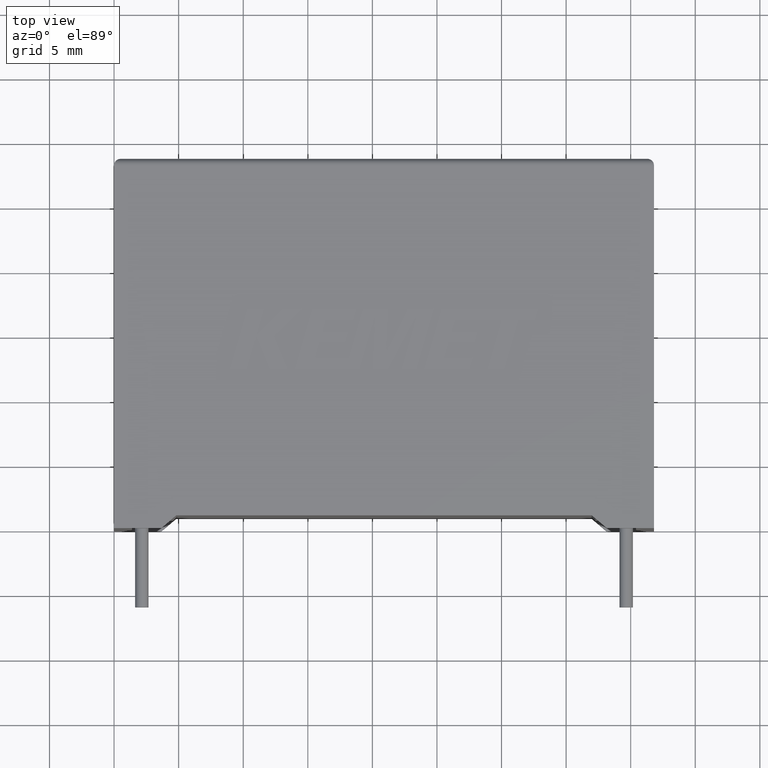
[diagram: clean part render]
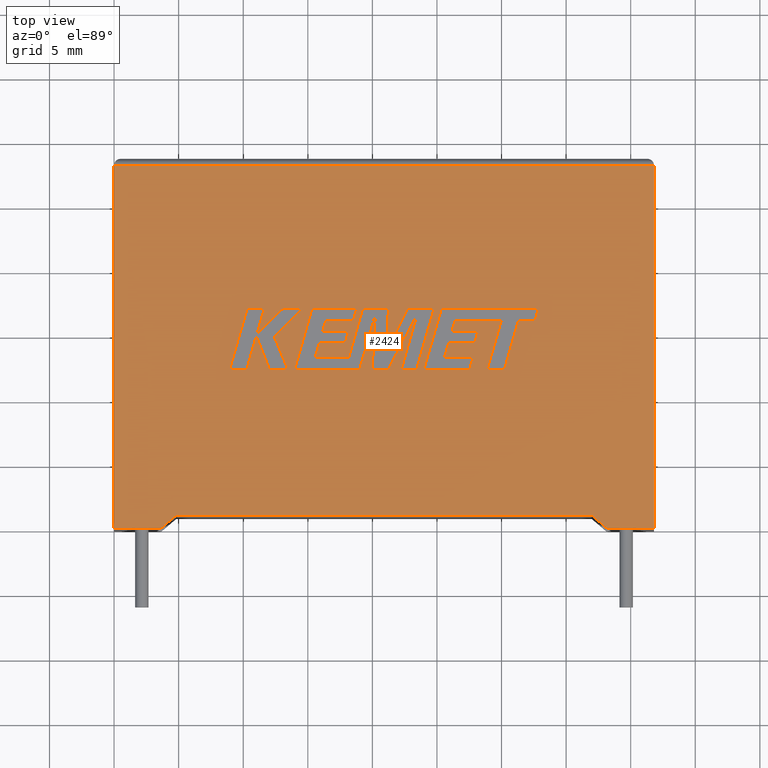
[diagram: same view with one face highlighted and labeled with its STEP entity id]
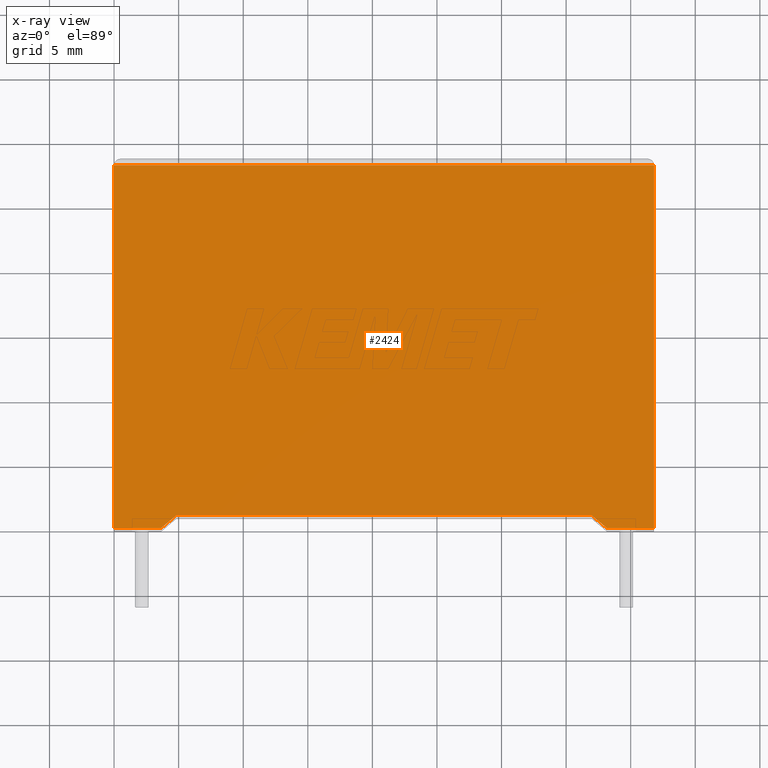
[diagram: x-ray of the same camera — body ghosted, the highlighted face saturated]
A machine part, top view. The second image highlights one B-rep face of the part: STEP entity #2424.
The next image is the same camera in x-ray: the body ghosted, the highlighted face saturated — about 0% of this face is hidden behind the body in this view.
In plain terms, the highlighted planar face has unit normal (0, 0, -1).
Its self-contained STEP definition (entity closure, byte-faithful):
#41 = DIRECTION ( 'NONE',  ( -1.000000000000000000, 0.000000000000000000, 0.000000000000000000 ) ) ;
#54 = CARTESIAN_POINT ( 'NONE',  ( 0.000000000000000000, 28.10000000000000142, 16.19999999999999929 ) ) ;
#123 = DIRECTION ( 'NONE',  ( 0.000000000000000000, 0.000000000000000000, -1.000000000000000000 ) ) ;
#163 = LINE ( 'NONE', #2987, #2778 ) ;
#165 = ORIENTED_EDGE ( 'NONE', *, *, #1883, .T. ) ;
#179 = LINE ( 'NONE', #2061, #2694 ) ;
#191 = LINE ( 'NONE', #1407, #1672 ) ;
#202 = DIRECTION ( 'NONE',  ( -0.7621142753456608965, -0.6474425312831697532, -0.000000000000000000 ) ) ;
#209 = EDGE_CURVE ( 'NONE', #2428, #2346, #163, .T. ) ;
#215 = EDGE_LOOP ( 'NONE', ( #2920, #165, #630, #736, #1695, #2621, #644, #1642 ) ) ;
#406 = LINE ( 'NONE', #1339, #596 ) ;
#432 = CARTESIAN_POINT ( 'NONE',  ( 0.000000000000000000, 28.10000000000000142, 16.19999999999999929 ) ) ;
#499 = VECTOR ( 'NONE', #3046, 1000.000000000000000 ) ;
#507 = CARTESIAN_POINT ( 'NONE',  ( 36.98921399999999693, 0.9861279999999993384, 16.19999999999999929 ) ) ;
#516 = VERTEX_POINT ( 'NONE', #432 ) ;
#517 = EDGE_CURVE ( 'NONE', #2376, #1182, #1374, .T. ) ;
#596 = VECTOR ( 'NONE', #1105, 1000.000000000000000 ) ;
#630 = ORIENTED_EDGE ( 'NONE', *, *, #2666, .T. ) ;
#644 = ORIENTED_EDGE ( 'NONE', *, *, #1496, .T. ) ;
#652 = CARTESIAN_POINT ( 'NONE',  ( 0.000000000000000000, 0.000000000000000000, 16.19999999999999929 ) ) ;
#736 = ORIENTED_EDGE ( 'NONE', *, *, #2939, .T. ) ;
#880 = VECTOR ( 'NONE', #2162, 1000.000000000000000 ) ;
#946 = CARTESIAN_POINT ( 'NONE',  ( 38.14999999999999858, 2.234980408443919708E-16, 16.19999999999999929 ) ) ;
#967 = FACE_OUTER_BOUND ( 'NONE', #215, .T. ) ;
#972 = CARTESIAN_POINT ( 'NONE',  ( 38.14999999999999858, 2.234980408443919708E-16, 16.19999999999999929 ) ) ;
#1105 = DIRECTION ( 'NONE',  ( 1.000000000000000000, 0.000000000000000000, 0.000000000000000000 ) ) ;
#1129 = DIRECTION ( 'NONE',  ( -1.000000000000000000, -1.212964107801604344E-16, 0.000000000000000000 ) ) ;
#1182 = VERTEX_POINT ( 'NONE', #2888 ) ;
#1254 = VERTEX_POINT ( 'NONE', #1983 ) ;
#1339 = CARTESIAN_POINT ( 'NONE',  ( 0.000000000000000000, 0.000000000000000000, 16.19999999999999929 ) ) ;
#1374 = LINE ( 'NONE', #2305, #2630 ) ;
#1407 = CARTESIAN_POINT ( 'NONE',  ( 20.89999999999999858, 0.9861280000000012258, 16.19999999999999929 ) ) ;
#1414 = VERTEX_POINT ( 'NONE', #946 ) ;
#1423 = PLANE ( 'NONE',  #2538 ) ;
#1496 = EDGE_CURVE ( 'NONE', #2160, #1414, #2174, .T. ) ;
#1497 = LINE ( 'NONE', #54, #2353 ) ;
#1640 = EDGE_CURVE ( 'NONE', #1414, #2428, #406, .T. ) ;
#1642 = ORIENTED_EDGE ( 'NONE', *, *, #1640, .T. ) ;
#1672 = VECTOR ( 'NONE', #1129, 1000.000000000000000 ) ;
#1695 = ORIENTED_EDGE ( 'NONE', *, *, #517, .F. ) ;
#1776 = CARTESIAN_POINT ( 'NONE',  ( 0.000000000000000000, 0.000000000000000000, 16.19999999999999929 ) ) ;
#1882 = CARTESIAN_POINT ( 'NONE',  ( 41.79999999999999716, 28.10000000000000142, 16.19999999999999929 ) ) ;
#1883 = EDGE_CURVE ( 'NONE', #2346, #516, #1497, .T. ) ;
#1983 = CARTESIAN_POINT ( 'NONE',  ( 0.000000000000000000, 0.000000000000000000, 16.19999999999999929 ) ) ;
#2061 = CARTESIAN_POINT ( 'NONE',  ( 0.000000000000000000, 0.000000000000000000, 16.19999999999999929 ) ) ;
#2160 = VERTEX_POINT ( 'NONE', #507 ) ;
#2162 = DIRECTION ( 'NONE',  ( 0.7621142753456608965, -0.6474425312831697532, -0.000000000000000000 ) ) ;
#2174 = LINE ( 'NONE', #972, #880 ) ;
#2305 = CARTESIAN_POINT ( 'NONE',  ( 3.649999999999999467, 2.234980408443919708E-16, 16.19999999999999929 ) ) ;
#2346 = VERTEX_POINT ( 'NONE', #1882 ) ;
#2353 = VECTOR ( 'NONE', #41, 1000.000000000000000 ) ;
#2376 = VERTEX_POINT ( 'NONE', #2881 ) ;
#2424 = ADVANCED_FACE ( 'NONE', ( #967 ), #1423, .F. ) ;
#2428 = VERTEX_POINT ( 'NONE', #2684 ) ;
#2512 = DIRECTION ( 'NONE',  ( -0.000000000000000000, -1.000000000000000000, -0.000000000000000000 ) ) ;
#2538 = AXIS2_PLACEMENT_3D ( 'NONE', #1776, #123, #2929 ) ;
#2621 = ORIENTED_EDGE ( 'NONE', *, *, #2970, .F. ) ;
#2630 = VECTOR ( 'NONE', #202, 1000.000000000000000 ) ;
#2666 = EDGE_CURVE ( 'NONE', #516, #1254, #179, .T. ) ;
#2684 = CARTESIAN_POINT ( 'NONE',  ( 41.79999999999999716, 0.000000000000000000, 16.19999999999999929 ) ) ;
#2694 = VECTOR ( 'NONE', #2512, 1000.000000000000000 ) ;
#2769 = LINE ( 'NONE', #652, #499 ) ;
#2778 = VECTOR ( 'NONE', #3008, 1000.000000000000000 ) ;
#2881 = CARTESIAN_POINT ( 'NONE',  ( 4.810785999999999341, 0.9861279999999993384, 16.19999999999999929 ) ) ;
#2888 = CARTESIAN_POINT ( 'NONE',  ( 3.649999999999999467, 2.234980408443919708E-16, 16.19999999999999929 ) ) ;
#2920 = ORIENTED_EDGE ( 'NONE', *, *, #209, .T. ) ;
#2929 = DIRECTION ( 'NONE',  ( -1.000000000000000000, 0.000000000000000000, -0.000000000000000000 ) ) ;
#2939 = EDGE_CURVE ( 'NONE', #1254, #1182, #2769, .T. ) ;
#2970 = EDGE_CURVE ( 'NONE', #2160, #2376, #191, .T. ) ;
#2987 = CARTESIAN_POINT ( 'NONE',  ( 41.79999999999999716, 0.000000000000000000, 16.19999999999999929 ) ) ;
#3008 = DIRECTION ( 'NONE',  ( 0.000000000000000000, 1.000000000000000000, 0.000000000000000000 ) ) ;
#3046 = DIRECTION ( 'NONE',  ( 1.000000000000000000, 0.000000000000000000, 0.000000000000000000 ) ) ;